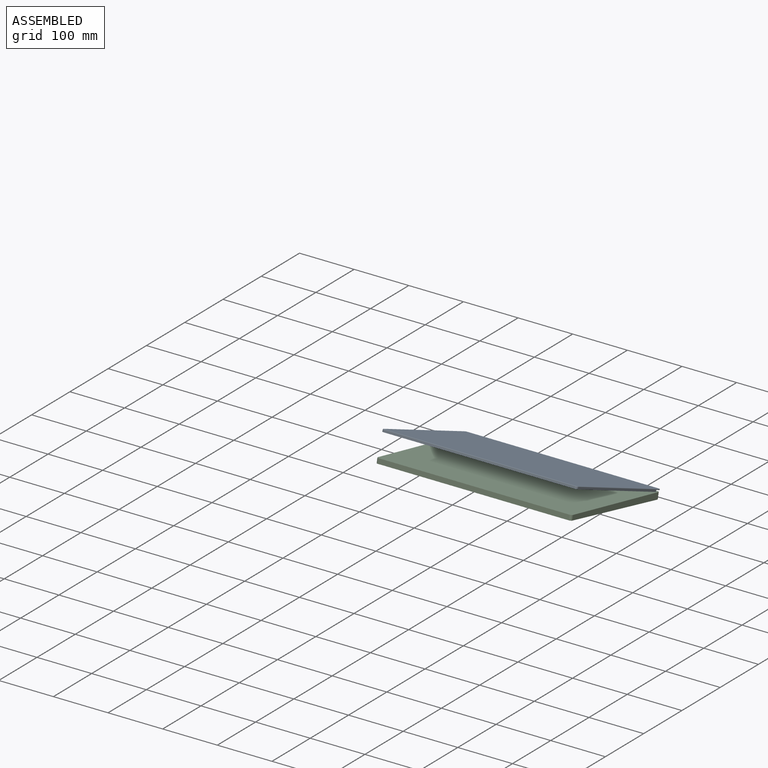
[diagram: assembled view]
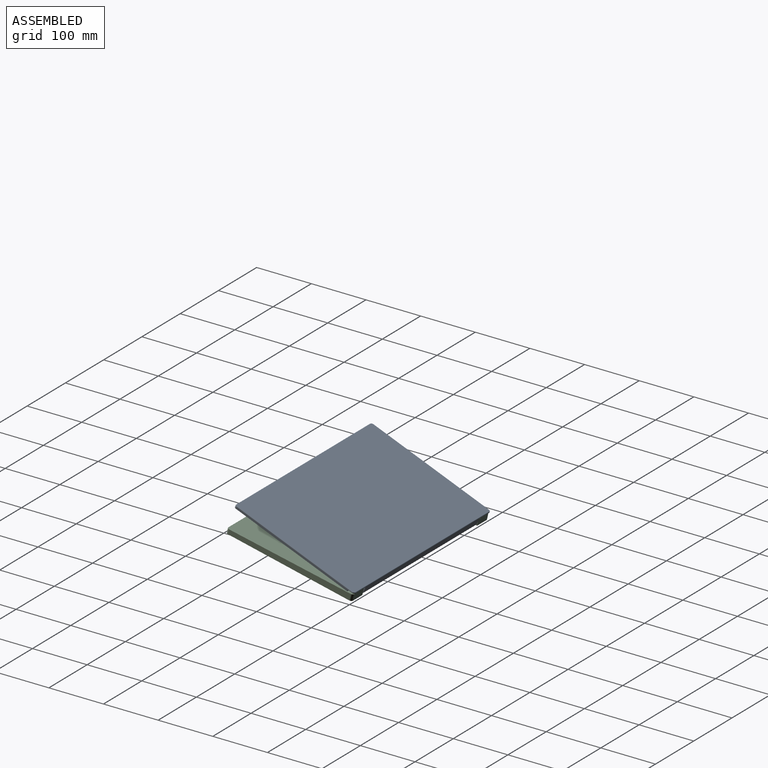
[diagram: assembled view, second angle]
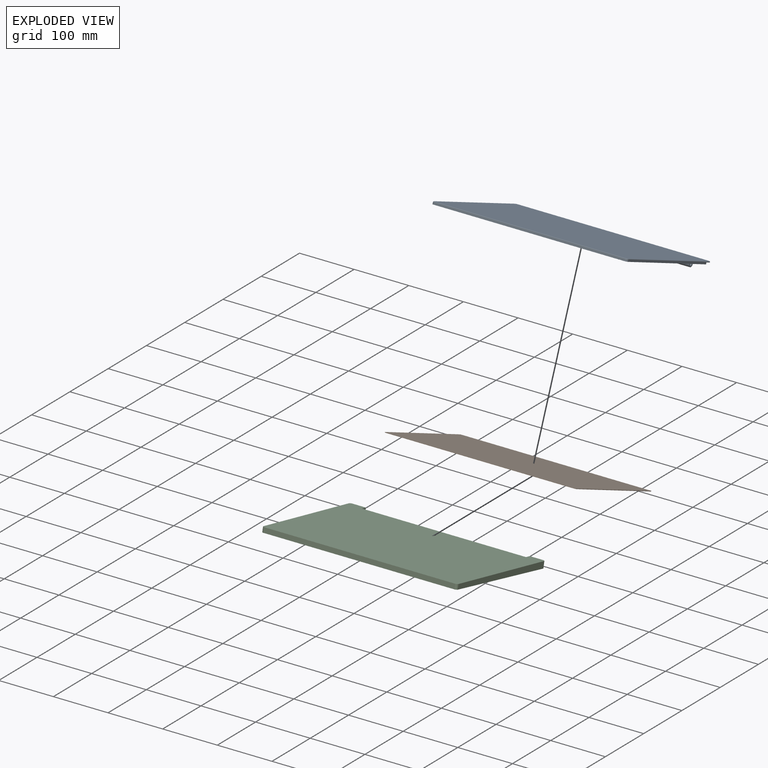
[diagram: exploded view]
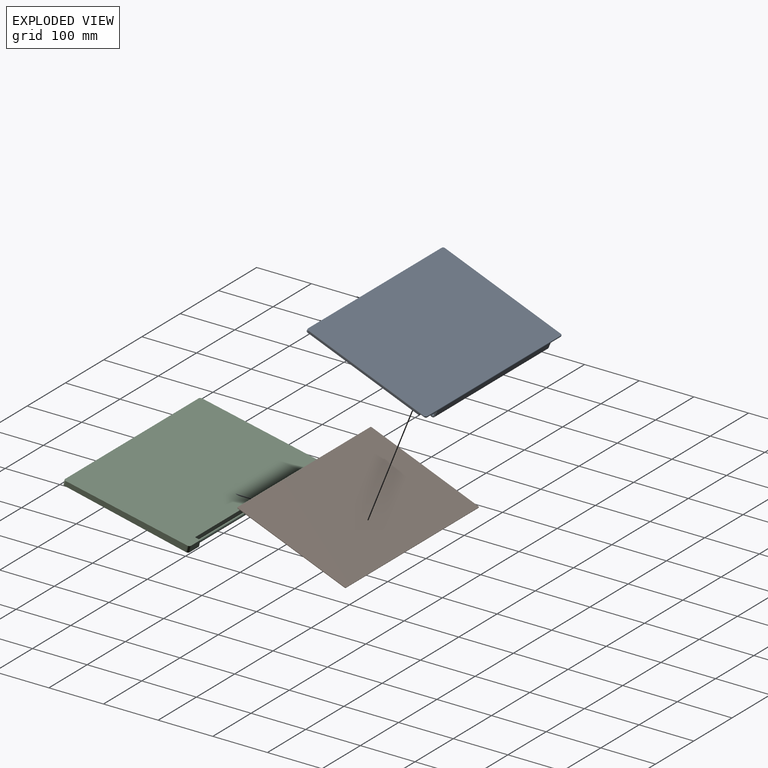
[diagram: exploded view, second angle]
ASSEMBLY  parts=3 mates=2
PART A: 41 faces, bbox 357.3x233.3x53.3 mm
  f0: plane 357.25x220.65mm, normal (0,-0.16,-0.99), area 4932mm2, adj f3,f5,f8,f14,f15,f24,f25,f27
  f1: plane 349.25x10.64mm, normal (0,0.98,-0.17), area 3248.7mm2, adj f2,f4,f6,f7,f12,f16,f26,f28
  f2: cylinder r=4mm len=4.09mm, axis (0,-0.17,-0.98), area 5mm2, adj f1,f8,f18,f28
  f3: plane 225.26x38.71mm, normal (-1,0,0), area 828.4mm2, adj f0,f4,f14,f19,f25,f26
  f4: cylinder r=4mm len=4.09mm, axis (0,0.17,0.98), area 5mm2, adj f1,f3,f17,f26
  f5: plane 349.25x3.63mm, normal (0,-0.98,0.17), area 1288.2mm2, adj f0,f14,f15,f23,f38,f39,f40
  f6: plane 15.91x12.37mm, normal (-1,0,0), area 123mm2, adj f1,f10,f11,f12,f13,f24,f25,f26
  f7: plane 15.91x12.37mm, normal (1,0,0), area 123mm2, adj f1,f10,f11,f12,f13,f24,f27,f28
  f8: plane 225.26x38.71mm, normal (1,0,0), area 828.4mm2, adj f0,f2,f15,f20,f27,f28
  f9: plane 355.25x230.55mm, normal (0,0.16,0.99), area 82952mm2, adj f16,f17,f18,f19,f20,f21,f22,f23
  f10: plane 296.75x4.87mm, normal (0,-0.99,0.16), area 1463.2mm2, adj f6,f7,f13,f24
  f11: cylinder r=2.62mm len=296.75mm, axis (-1,0,0), area 4894.4mm2, adj f6,f7
  f12: cylinder r=5mm len=296.75mm, axis (-1,0,0), area 2316.2mm2, adj f1,f6,f7,f13
  f13: cylinder r=5mm len=296.75mm, axis (-1,0,0), area 2295.4mm2, adj f6,f7,f10,f12
  f14: cylinder r=4mm len=4.59mm, axis (0,-0.17,-0.98), area 23.2mm2, adj f0,f3,f5,f21
  f15: cylinder r=4mm len=4.59mm, axis (0,0.17,0.98), area 23.2mm2, adj f0,f5,f8,f22
  f16: cylinder r=1mm len=349.25mm, axis (1,0,0), area 553.7mm2, adj f1,f9,f17,f18
  f17: bspline ~4.81x4mm, area 9mm2, adj f4,f9,f16,f19
  f18: bspline ~4.81x4.18mm, area 9mm2, adj f2,f9,f16,f20
  f19: cylinder r=1mm len=224.78mm, axis (0,0.99,-0.16), area 357.4mm2, adj f3,f9,f17,f21
  f20: cylinder r=1mm len=224.78mm, axis (0,-0.99,0.16), area 357.4mm2, adj f8,f9,f18,f22
  f21: bspline ~4.79x4mm, area 8.9mm2, adj f9,f14,f19,f23
  f22: bspline ~4.7x4.28mm, area 8.9mm2, adj f9,f15,f20,f23
  f23: cylinder r=1mm len=349.25mm, axis (-1,0,0), area 543.5mm2, adj f5,f9,f21,f22
  f24: cylinder r=2mm len=296.75mm, axis (1,0,0), area 932.3mm2, adj f0,f6,f7,f10
  f25: plane 30.25x2.96mm, normal (0,0.99,-0.16), area 90.7mm2, adj f0,f3,f6,f26
  f26: plane 30.25x11.89mm, normal (0,-0.16,-0.99), area 360.8mm2, adj f1,f3,f4,f6,f25
  f27: plane 30.25x2.96mm, normal (0,0.99,-0.16), area 90.7mm2, adj f0,f7,f8,f28
  f28: plane 30.25x11.89mm, normal (0,-0.16,-0.99), area 360.8mm2, adj f1,f2,f7,f8,f27
  f29: plane 207.38x34.06mm, normal (-1,0,0), area 105mm2, adj f0,f30,f36,f37
  f30: cylinder r=2mm len=2.05mm, axis (0,-0.16,-0.99), area 1.6mm2, adj f0,f29,f31,f37
  f31: plane 346x0.49mm, normal (0,0.99,-0.16), area 172.7mm2, adj f0,f30,f32,f37,f38,f39,f40
  f32: cylinder r=2mm len=2.05mm, axis (0,-0.16,-0.99), area 1.6mm2, adj f0,f31,f33,f37
  f33: plane 207.38x34.06mm, normal (1,0,0), area 105mm2, adj f0,f32,f34,f37
  f34: cylinder r=2mm len=2.05mm, axis (0,-0.16,-0.99), area 1.6mm2, adj f0,f33,f35,f37
  f35: plane 346x0.49mm, normal (0,-0.99,0.16), area 173mm2, adj f0,f34,f36,f37
  f36: cylinder r=2mm len=2.05mm, axis (0,-0.16,-0.99), area 1.6mm2, adj f0,f29,f35,f37
  f37: plane 350x211.25mm, normal (0,-0.16,-0.99), area 74896.6mm2, adj f29,f30,f31,f32,f33,f34,f35,f36
  f38: cylinder r=3.01mm len=3.15mm, axis (0,-0.16,-0.99), area 0.2mm2, adj f0,f5,f31,f40
  f39: cylinder r=3.01mm len=3.15mm, axis (0,-0.16,-0.99), area 0.2mm2, adj f0,f5,f31,f40
  f40: plane 6.03x3.14mm, normal (0,-0.16,-0.99), area 18.2mm2, adj f5,f31,f38,f39
PART B: 10 faces, bbox 350x211.4x35 mm
  f0: plane 207.44x34.4mm, normal (1,0,0), area 178.5mm2, adj f1,f7,f8,f9
  f1: cylinder r=2mm len=2.11mm, axis (0,0.16,0.99), area 2.7mm2, adj f0,f2,f8,f9
  f2: plane 346x0.84mm, normal (0,-0.99,0.16), area 294.1mm2, adj f1,f3,f8,f9
  f3: cylinder r=2mm len=2.11mm, axis (0,0.16,0.99), area 2.7mm2, adj f2,f4,f8,f9
  f4: plane 207.44x34.4mm, normal (-1,0,0), area 178.5mm2, adj f3,f5,f8,f9
  f5: cylinder r=2mm len=2.11mm, axis (0,0.16,0.99), area 2.7mm2, adj f4,f6,f8,f9
  f6: plane 346x0.84mm, normal (0,0.99,-0.16), area 294.1mm2, adj f5,f7,f8,f9
  f7: cylinder r=2mm len=2.11mm, axis (0,0.16,0.99), area 2.7mm2, adj f0,f6,f8,f9
  f8: plane 350x211.25mm, normal (0,-0.16,-0.99), area 74896.6mm2, adj f0,f1,f2,f3,f4,f5,f6,f7
  f9: plane 350x211.25mm, normal (0,0.16,0.99), area 74896.6mm2, adj f0,f1,f2,f3,f4,f5,f6,f7
PART C: 15 faces, bbox 357.3x235.5x11.8 mm
  f0: plane 24.63x11.82mm, normal (0,1,0), area 291.1mm2, adj f5,f6,f8,f11
  f1: plane 349.25x8.82mm, normal (0,-1,0), area 3080.4mm2, adj f5,f6,f12,f13
  f2: plane 24.63x11.82mm, normal (0,1,0), area 291.1mm2, adj f5,f6,f7,f14
  f3: plane 227.5x11.77mm, normal (-1,0,0), area 2347.8mm2, adj f5,f6,f11,f12
  f4: plane 227.5x11.77mm, normal (1,0,0), area 2347.8mm2, adj f5,f6,f13,f14
  f5: plane 357.25x235.5mm, normal (0,0,-1), area 81118.6mm2, adj f0,f1,f2,f3,f4,f7,f8,f9
  f6: plane 357.25x235.5mm, normal (0,-0.01,1), area 81125.2mm2, adj f0,f1,f2,f3,f4,f7,f8,f9
  f7: plane 11.82x10mm, normal (-1,0,0), area 97.9mm2, adj f2,f5,f6,f9,f10
  f8: plane 11.82x10mm, normal (1,0,0), area 97.9mm2, adj f0,f5,f6,f9,f10
  f9: plane 300x11.69mm, normal (0,1,0), area 3507.7mm2, adj f5,f6,f7,f8
  f10: cylinder r=2.5mm len=300mm, axis (1,0,0), area 4712.4mm2, adj f7,f8
  f11: cylinder r=4mm len=11.82mm, axis (0,0,1), area 74.1mm2, adj f0,f3,f5,f6
  f12: cylinder r=4mm len=8.87mm, axis (0,0,-1), area 55.5mm2, adj f1,f3,f5,f6
  f13: cylinder r=4mm len=8.87mm, axis (0,0,1), area 55.5mm2, adj f1,f4,f5,f6
  f14: cylinder r=4mm len=11.82mm, axis (0,0,-1), area 74.1mm2, adj f2,f4,f5,f6
PLACE A rot(axis=(-1,0,0),12.7deg) t=(-14.1,3.88,2.46)mm
PLACE B rot(axis=(-1,0,0),12.7deg) t=(-14.1,4.07,2.92)mm
PLACE C rot(axis=(-1,0,0),12.7deg) t=(-14.1,3.88,2.46)mm
MATE cylindrical A.f11 <-> C.f10  axis (-1,0,0) through (-14.1,114.96,-17.48)mm
MATE planar B.f9 <-> A.f37  axis (0,0.37,0.93) through (-14.1,6.18,34.29)mm
